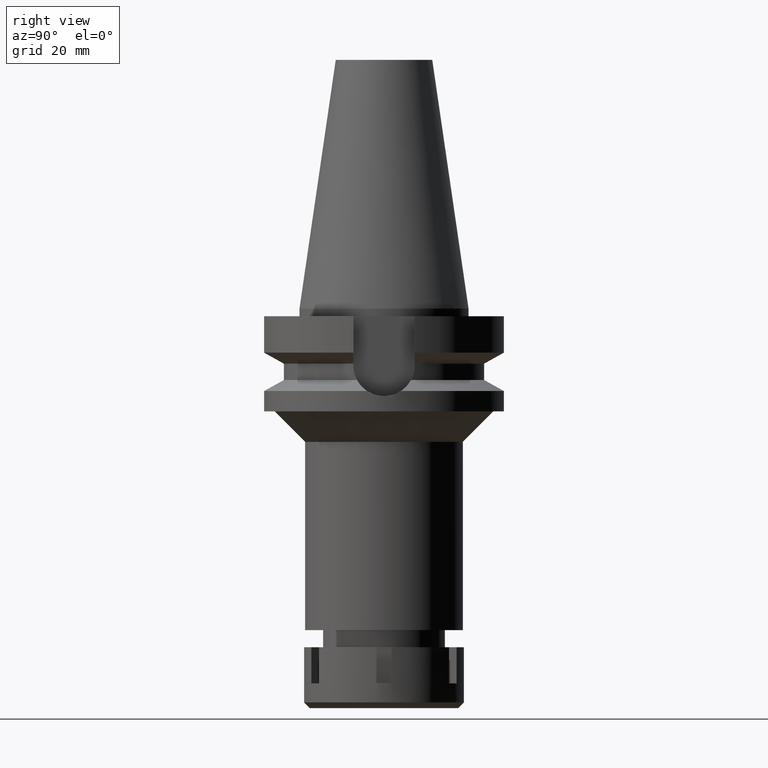
[diagram: clean part render]
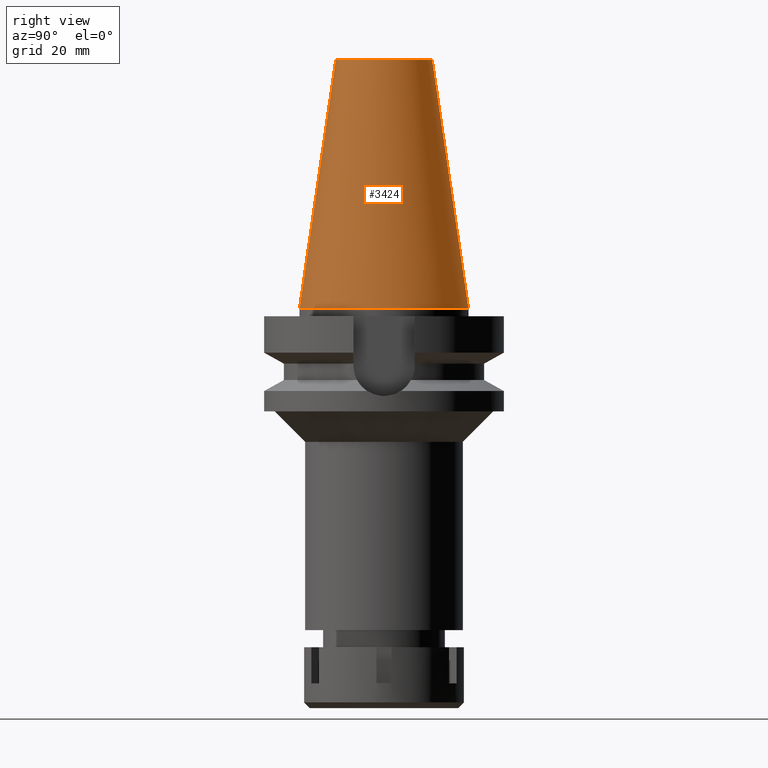
[diagram: same view with one face highlighted and labeled with its STEP entity id]
A machine part, right view. The second image highlights one B-rep face of the part: STEP entity #3424.
In plain terms, the highlighted conical surface has half-angle 8.297 deg.
Its self-contained STEP definition (entity closure, byte-faithful):
#110 = EDGE_CURVE ( 'NONE', #2076, #2263, #2972, .T. ) ;
#143 = CARTESIAN_POINT ( 'NONE',  ( 0.0000000000000000000, 22.22500000000000142, 9.947598300640998705E-14 ) ) ;
#215 = DIRECTION ( 'NONE',  ( 0.0000000000000000000, 0.0000000000000000000, -1.000000000000000000 ) ) ;
#257 = CARTESIAN_POINT ( 'NONE',  ( 0.0000000000000000000, 12.68766899429999917, 65.40000000000000568 ) ) ;
#359 = CIRCLE ( 'NONE', #3036, 12.68766899429999917 ) ;
#370 = DIRECTION ( 'NONE',  ( 0.0000000000000000000, -1.000000000000000000, 0.0000000000000000000 ) ) ;
#391 = EDGE_LOOP ( 'NONE', ( #2866, #2654, #2571, #2396 ) ) ;
#437 = CARTESIAN_POINT ( 'NONE',  ( 0.0000000000000000000, -22.22500000000000142, 2.842170943039999687E-14 ) ) ;
#441 = EDGE_CURVE ( 'NONE', #2690, #2076, #359, .T. ) ;
#612 = LINE ( 'NONE', #1788, #2626 ) ;
#906 = DIRECTION ( 'NONE',  ( 0.0000000000000000000, 0.1443043893539925626, -0.9895333461855498891 ) ) ;
#954 = AXIS2_PLACEMENT_3D ( 'NONE', #2513, #2848, #370 ) ;
#963 = CIRCLE ( 'NONE', #3485, 22.22500000000000142 ) ;
#1022 = DIRECTION ( 'NONE',  ( 0.0000000000000000000, 1.000000000000000000, 0.0000000000000000000 ) ) ;
#1182 = EDGE_CURVE ( 'NONE', #2690, #1808, #612, .T. ) ;
#1615 = CONICAL_SURFACE ( 'NONE', #954, 17.45633449714999941, 0.1448099680379422438 ) ;
#1706 = VECTOR ( 'NONE', #2758, 1000.000000000000114 ) ;
#1788 = CARTESIAN_POINT ( 'NONE',  ( 0.0000000000000000000, 12.68766899429999917, 65.40000000000000568 ) ) ;
#1808 = VERTEX_POINT ( 'NONE', #143 ) ;
#2076 = VERTEX_POINT ( 'NONE', #3114 ) ;
#2080 = CARTESIAN_POINT ( 'NONE',  ( 0.0000000000000000000, 1.625106302469000024E-14, 2.842170943039999687E-14 ) ) ;
#2144 = DIRECTION ( 'NONE',  ( 0.0000000000000000000, 1.000000000000000000, 0.0000000000000000000 ) ) ;
#2152 = CARTESIAN_POINT ( 'NONE',  ( 0.0000000000000000000, 1.625106302469000024E-14, 65.40000000000000568 ) ) ;
#2263 = VERTEX_POINT ( 'NONE', #437 ) ;
#2396 = ORIENTED_EDGE ( 'NONE', *, *, #1182, .F. ) ;
#2513 = CARTESIAN_POINT ( 'NONE',  ( 0.0000000000000000000, 1.625106302469000024E-14, 32.70000000000000284 ) ) ;
#2533 = FACE_OUTER_BOUND ( 'NONE', #391, .T. ) ;
#2571 = ORIENTED_EDGE ( 'NONE', *, *, #2960, .F. ) ;
#2626 = VECTOR ( 'NONE', #906, 1000.000000000000114 ) ;
#2654 = ORIENTED_EDGE ( 'NONE', *, *, #110, .T. ) ;
#2690 = VERTEX_POINT ( 'NONE', #257 ) ;
#2758 = DIRECTION ( 'NONE',  ( 0.0000000000000000000, -0.1443043893539925626, -0.9895333461855498891 ) ) ;
#2848 = DIRECTION ( 'NONE',  ( 0.0000000000000000000, 0.0000000000000000000, -1.000000000000000000 ) ) ;
#2866 = ORIENTED_EDGE ( 'NONE', *, *, #441, .T. ) ;
#2960 = EDGE_CURVE ( 'NONE', #1808, #2263, #963, .T. ) ;
#2972 = LINE ( 'NONE', #3383, #1706 ) ;
#3036 = AXIS2_PLACEMENT_3D ( 'NONE', #2152, #215, #1022 ) ;
#3114 = CARTESIAN_POINT ( 'NONE',  ( 0.0000000000000000000, -12.68766899429999917, 65.40000000000000568 ) ) ;
#3266 = DIRECTION ( 'NONE',  ( 0.0000000000000000000, 0.0000000000000000000, -1.000000000000000000 ) ) ;
#3383 = CARTESIAN_POINT ( 'NONE',  ( 0.0000000000000000000, -12.68766899429999917, 65.40000000000000568 ) ) ;
#3424 = ADVANCED_FACE ( 'NONE', ( #2533 ), #1615, .T. ) ;
#3485 = AXIS2_PLACEMENT_3D ( 'NONE', #2080, #3266, #2144 ) ;